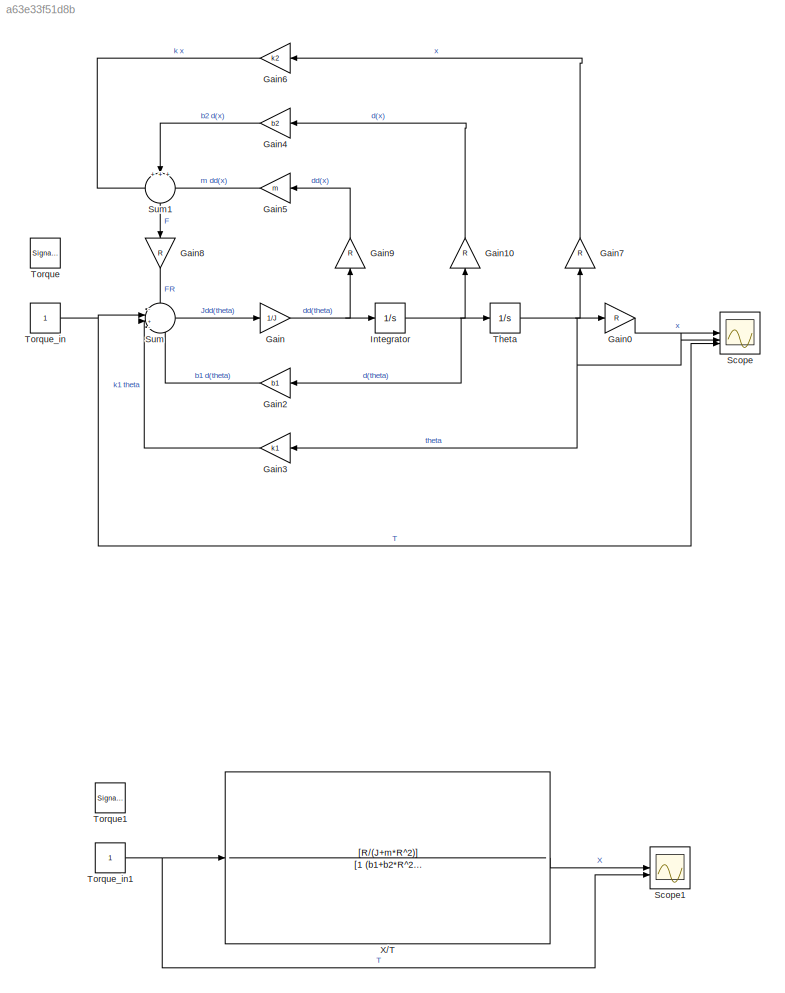
MODEL slx_a63e33f51d8b
KIND model
CONFIG AbsTol = auto
CONFIG EnableMultiTasking = off
CONFIG FixedStep = auto
CONFIG MaxStep = auto
CONFIG MinStep = auto
CONFIG RelTol = 1e-3
CONFIG SampleTimeConstraint = Unconstrained
CONFIG SolverName = VariableStepAuto
CONFIG StartTime = 0.0
CONFIG StopTime = 20
BLOCK [Gain] Gain
  Gain = 1/J
BLOCK [Gain] Gain0
  Gain = R
BLOCK [Gain] Gain10
  Gain = R
  NameLocation = left
BLOCK [Gain] Gain2
  Gain = b1
BLOCK [Gain] Gain3
  Gain = k1
BLOCK [Gain] Gain4
  Gain = b2
  NameLocation = top
BLOCK [Gain] Gain5
  Gain = m
BLOCK [Gain] Gain6
  Gain = k2
BLOCK [Gain] Gain7
  Gain = R
  NameLocation = left
BLOCK [Gain] Gain8
  Gain = R
  NameLocation = right
BLOCK [Gain] Gain9
  Gain = R
  NameLocation = left
BLOCK [Integrator] Integrator
BLOCK [Scope] Scope
  Floating = off
  NumInputPorts = 3
  ScopeSpecificationString = Simulink.scopes.TimeScopeBlockCfg('CurrentConfiguration', extmgr.ConfigurationSet(extmgr.Configuration('Core','General UI',true),extmgr.Configuration('Core','Source UI',true),extmgr.Configuration('Sources','WiredSimulink',true),extmgr.Configuration('Visuals','Time Domain',true,'SerializedDisplays',{struct('MinYLimReal','-0.00562','MaxYLimReal','0.05056','YLabelReal','','MinYLimMag','0.00000','MaxY...<+2799ch>
BLOCK [Scope] Scope1
  Floating = off
  NumInputPorts = 2
  ScopeSpecificationString = Simulink.scopes.TimeScopeBlockCfg('CurrentConfiguration', extmgr.ConfigurationSet(extmgr.Configuration('Core','General UI',true),extmgr.Configuration('Core','Source UI',true),extmgr.Configuration('Sources','WiredSimulink',true,'DataLoggingVariableName','ScopeData1'),extmgr.Configuration('Visuals','Time Domain',true,'SerializedDisplays',{struct('MinYLimReal','-0.00562','MaxYLimReal','0.05061','YLab...<+2780ch>
BLOCK [Sum] Sum
  Inputs = -|+--
BLOCK [Sum] Sum1
  Inputs = +++
  NameLocation = left
BLOCK [Integrator] Theta
BLOCK [SignalGenerator] Torque
  Units = rad/sec
BLOCK [SignalGenerator] Torque1
  Units = rad/sec
BLOCK [Constant] Torque_in
BLOCK [Constant] Torque_in1
BLOCK [TransferFcn] X//T
  Denominator = [1 (b1+b2*R^2)/(J+m*R^2) (k1+k2*R^2)/(J+m*R^2)]
  Numerator = [R/(J+m*R^2)]
LINE Gain0:1 -> Scope:1
LINE Gain10:1 -> Gain4:1
LINE Gain2:1 -> Sum:4
LINE Gain3:1 -> Sum:3
LINE Gain4:1 -> Sum1:2
LINE Gain5:1 -> Sum1:3
LINE Gain6:1 -> Sum1:1
LINE Gain7:1 -> Gain6:1
LINE Gain8:1 -> Sum:1
LINE Gain9:1 -> Gain5:1
NET Gain:1 -> Gain9:1, Integrator:1
NET Integrator:1 -> Gain10:1, Gain2:1, Theta:1
LINE Sum1:1 -> Gain8:1
LINE Sum:1 -> Gain:1
NET Theta:1 -> Gain0:1, Gain3:1, Gain7:1, Scope:2
NET Torque_in1:1 -> Scope1:2, X//T:1
NET Torque_in:1 -> Scope:3, Sum:2
LINE X//T:1 -> Scope1:1
note: NET lines group one-source signal fan-out (src -> all destinations, sorted); 1:1 wires keep LINE
